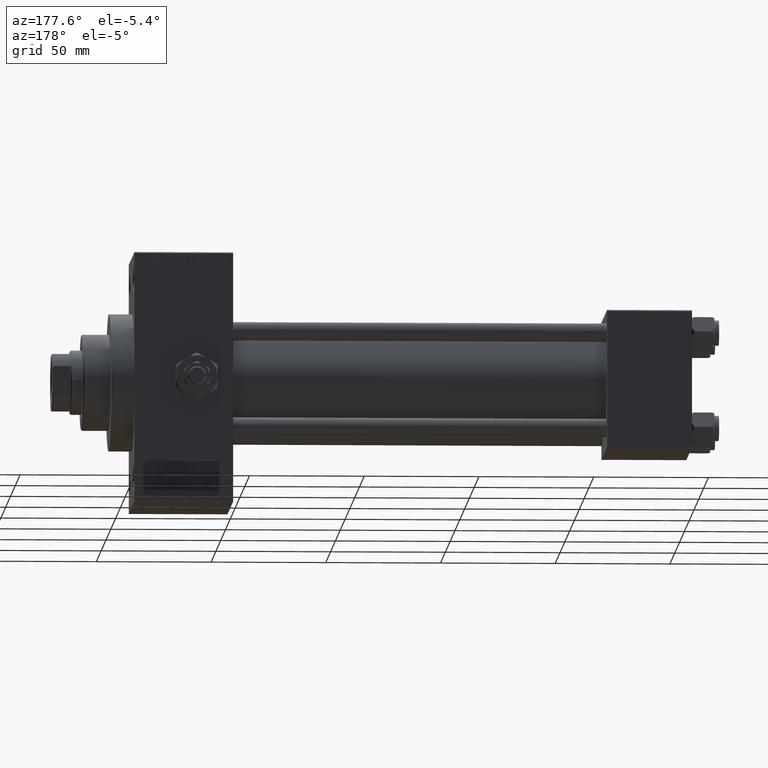
[diagram: clean part render]
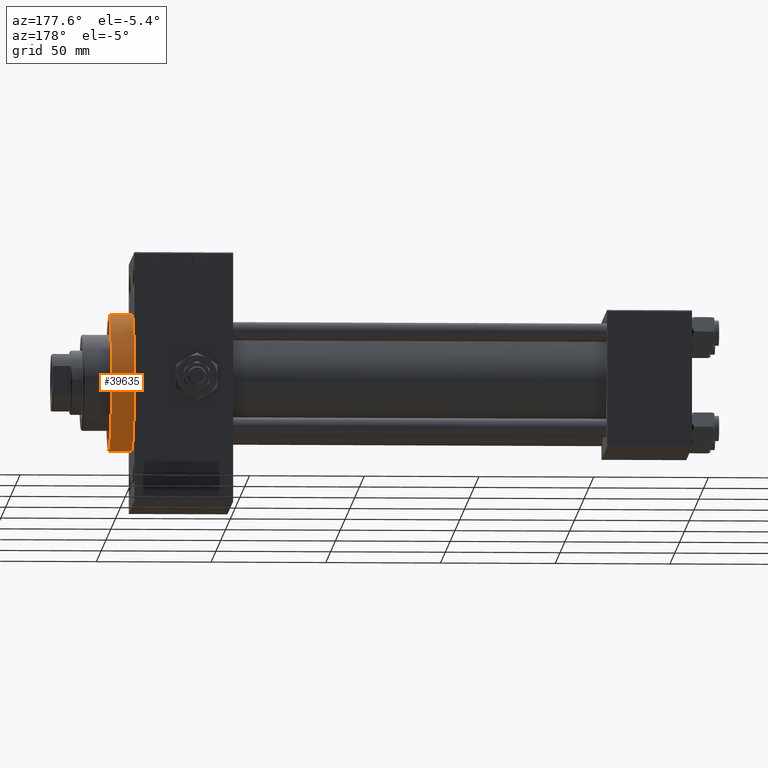
[diagram: same view with one face highlighted and labeled with its STEP entity id]
A machine part, auxiliary view. The second image highlights one B-rep face of the part: STEP entity #39635.
In plain terms, the highlighted cylindrical surface (partial cylindrical patch) has radius 30 mm, axis along (-1, -0, -0).
Its self-contained STEP definition (entity closure, byte-faithful):
#49 = VECTOR ( 'NONE', #38137, 1000.000000000000000 ) ;
#1406 = DIRECTION ( 'NONE',  ( -1.000000000000000000, -0.000000000000000000, -0.000000000000000000 ) ) ;
#3914 = LINE ( 'NONE', #18916, #49 ) ;
#7129 = ORIENTED_EDGE ( 'NONE', *, *, #12859, .F. ) ;
#10213 = VERTEX_POINT ( 'NONE', #42944 ) ;
#10250 = EDGE_CURVE ( 'NONE', #10213, #30530, #26950, .T. ) ;
#10728 = CIRCLE ( 'NONE', #39835, 30.00000000000000000 ) ;
#11569 = DIRECTION ( 'NONE',  ( 0.000000000000000000, 0.000000000000000000, -1.000000000000000000 ) ) ;
#12664 = VERTEX_POINT ( 'NONE', #37542 ) ;
#12859 = EDGE_CURVE ( 'NONE', #30426, #33094, #13356, .T. ) ;
#13114 = DIRECTION ( 'NONE',  ( 0.000000000000000000, 0.000000000000000000, -1.000000000000000000 ) ) ;
#13356 = LINE ( 'NONE', #31615, #20708 ) ;
#13597 = DIRECTION ( 'NONE',  ( 1.000000000000000000, 0.000000000000000000, 0.000000000000000000 ) ) ;
#16409 = DIRECTION ( 'NONE',  ( 0.000000000000000000, 0.000000000000000000, 1.000000000000000000 ) ) ;
#16742 = EDGE_CURVE ( 'NONE', #30530, #33094, #10728, .T. ) ;
#16822 = DIRECTION ( 'NONE',  ( -1.000000000000000000, -0.000000000000000000, -0.000000000000000000 ) ) ;
#18916 = CARTESIAN_POINT ( 'NONE',  ( 253.0000000000000000, 3.673940397442059178E-15, -30.00000000000000000 ) ) ;
#20244 = ORIENTED_EDGE ( 'NONE', *, *, #26146, .T. ) ;
#20510 = CARTESIAN_POINT ( 'NONE',  ( 243.0000000000000000, 0.000000000000000000, 30.00000000000000000 ) ) ;
#20708 = VECTOR ( 'NONE', #16822, 1000.000000000000000 ) ;
#23516 = ORIENTED_EDGE ( 'NONE', *, *, #10250, .T. ) ;
#23633 = CARTESIAN_POINT ( 'NONE',  ( 243.0000000000000000, 0.000000000000000000, 0.000000000000000000 ) ) ;
#26146 = EDGE_CURVE ( 'NONE', #12664, #10213, #3914, .T. ) ;
#26950 = CIRCLE ( 'NONE', #43480, 30.00000000000000000 ) ;
#27859 = CIRCLE ( 'NONE', #35694, 30.00000000000000000 ) ;
#30426 = VERTEX_POINT ( 'NONE', #33079 ) ;
#30530 = VERTEX_POINT ( 'NONE', #45396 ) ;
#30544 = DIRECTION ( 'NONE',  ( 1.000000000000000000, 0.000000000000000000, 0.000000000000000000 ) ) ;
#31615 = CARTESIAN_POINT ( 'NONE',  ( 253.0000000000000000, 0.000000000000000000, 30.00000000000000000 ) ) ;
#32820 = ORIENTED_EDGE ( 'NONE', *, *, #16742, .T. ) ;
#33079 = CARTESIAN_POINT ( 'NONE',  ( 253.0000000000000000, 0.000000000000000000, 30.00000000000000000 ) ) ;
#33094 = VERTEX_POINT ( 'NONE', #20510 ) ;
#34406 = EDGE_CURVE ( 'NONE', #12664, #30426, #27859, .T. ) ;
#34650 = CARTESIAN_POINT ( 'NONE',  ( 253.0000000000000000, 0.000000000000000000, 0.000000000000000000 ) ) ;
#34899 = FACE_OUTER_BOUND ( 'NONE', #37677, .T. ) ;
#34966 = DIRECTION ( 'NONE',  ( 0.000000000000000000, 0.000000000000000000, -1.000000000000000000 ) ) ;
#35207 = DIRECTION ( 'NONE',  ( 1.000000000000000000, 0.000000000000000000, 0.000000000000000000 ) ) ;
#35694 = AXIS2_PLACEMENT_3D ( 'NONE', #38903, #35207, #34966 ) ;
#36023 = CARTESIAN_POINT ( 'NONE',  ( 243.0000000000000000, 0.000000000000000000, 0.000000000000000000 ) ) ;
#36527 = AXIS2_PLACEMENT_3D ( 'NONE', #34650, #1406, #16409 ) ;
#37542 = CARTESIAN_POINT ( 'NONE',  ( 253.0000000000000000, 3.673940397442059178E-15, -30.00000000000000000 ) ) ;
#37677 = EDGE_LOOP ( 'NONE', ( #47659, #20244, #23516, #32820, #7129 ) ) ;
#38137 = DIRECTION ( 'NONE',  ( -1.000000000000000000, -0.000000000000000000, -0.000000000000000000 ) ) ;
#38903 = CARTESIAN_POINT ( 'NONE',  ( 253.0000000000000000, 0.000000000000000000, 0.000000000000000000 ) ) ;
#39635 = ADVANCED_FACE ( 'NONE', ( #34899 ), #45990, .T. ) ;
#39835 = AXIS2_PLACEMENT_3D ( 'NONE', #23633, #30544, #11569 ) ;
#42944 = CARTESIAN_POINT ( 'NONE',  ( 243.0000000000000000, 3.673940397442059178E-15, -30.00000000000000000 ) ) ;
#43480 = AXIS2_PLACEMENT_3D ( 'NONE', #36023, #13597, #13114 ) ;
#45396 = CARTESIAN_POINT ( 'NONE',  ( 243.0000000000000000, 30.00000000000000000, 0.000000000000000000 ) ) ;
#45990 = CYLINDRICAL_SURFACE ( 'NONE', #36527, 30.00000000000000000 ) ;
#47659 = ORIENTED_EDGE ( 'NONE', *, *, #34406, .F. ) ;